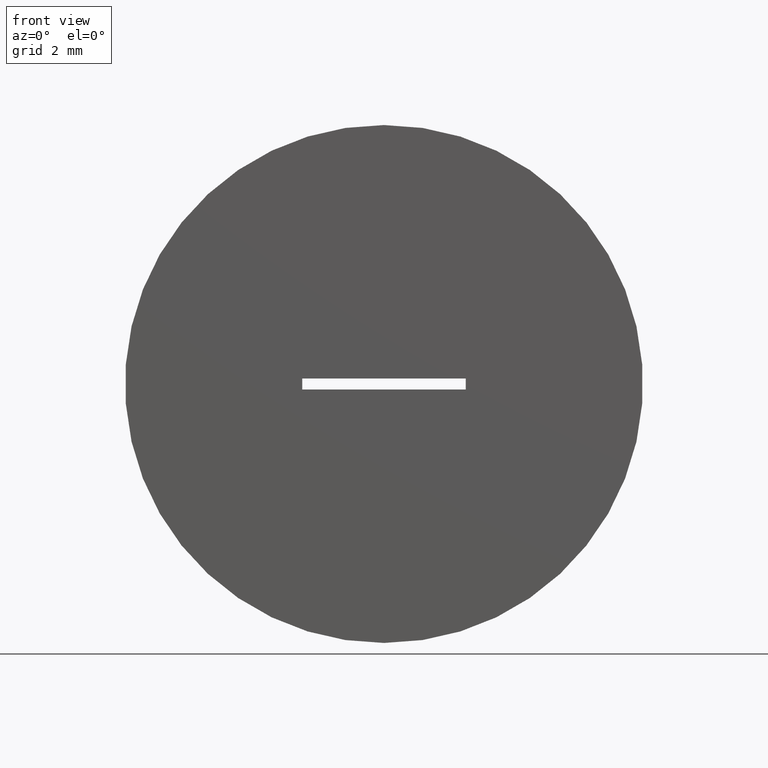
[diagram: clean part render]
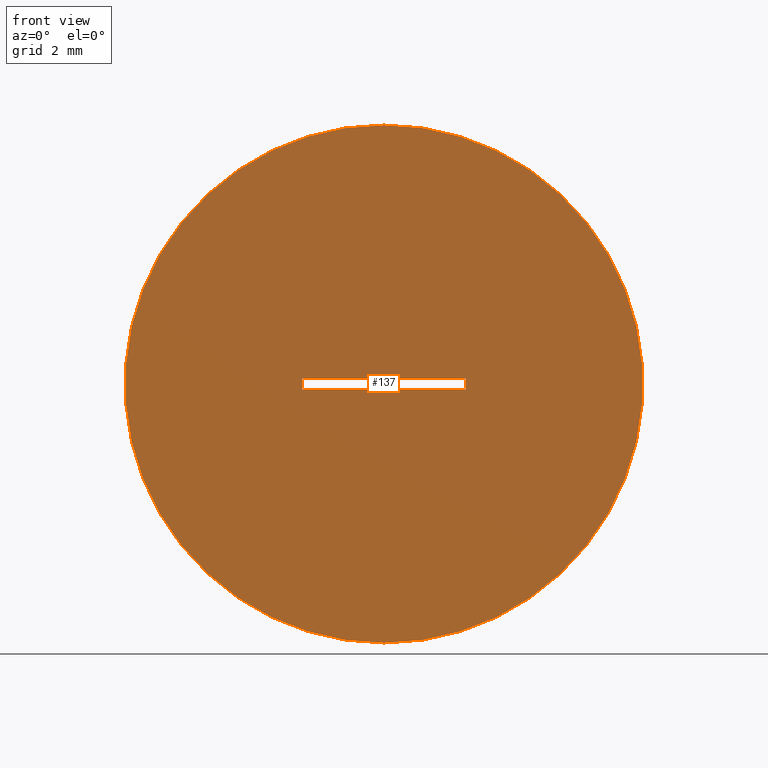
[diagram: same view with one face highlighted and labeled with its STEP entity id]
A machine part, front view. The second image highlights one B-rep face of the part: STEP entity #137.
In plain terms, the highlighted planar face has unit normal (0, 1, 0).
Its self-contained STEP definition (entity closure, byte-faithful):
#5 = CARTESIAN_POINT ( 'NONE',  ( -1.499999999999999778, 0.000000000000000000, -0.09999999999999999167 ) ) ;
#7 = LINE ( 'NONE', #89, #75 ) ;
#9 = FACE_BOUND ( 'NONE', #263, .T. ) ;
#11 = CARTESIAN_POINT ( 'NONE',  ( 0.000000000000000000, 0.000000000000000000, 0.000000000000000000 ) ) ;
#17 = AXIS2_PLACEMENT_3D ( 'NONE', #66, #70, #278 ) ;
#23 = VERTEX_POINT ( 'NONE', #269 ) ;
#24 = EDGE_CURVE ( 'NONE', #283, #183, #225, .T. ) ;
#28 = ORIENTED_EDGE ( 'NONE', *, *, #24, .T. ) ;
#33 = CARTESIAN_POINT ( 'NONE',  ( 0.000000000000000000, 0.000000000000000000, -4.750000000000000000 ) ) ;
#60 = EDGE_CURVE ( 'NONE', #107, #283, #230, .T. ) ;
#66 = CARTESIAN_POINT ( 'NONE',  ( 0.000000000000000000, 0.000000000000000000, 0.000000000000000000 ) ) ;
#68 = CARTESIAN_POINT ( 'NONE',  ( -1.499999999999999778, 0.000000000000000000, 0.1000000000000000194 ) ) ;
#70 = DIRECTION ( 'NONE',  ( 0.000000000000000000, 1.000000000000000000, 0.000000000000000000 ) ) ;
#71 = EDGE_CURVE ( 'NONE', #183, #292, #7, .T. ) ;
#75 = VECTOR ( 'NONE', #165, 1000.000000000000000 ) ;
#84 = AXIS2_PLACEMENT_3D ( 'NONE', #227, #115, #266 ) ;
#86 = DIRECTION ( 'NONE',  ( -1.000000000000000000, -0.000000000000000000, -0.000000000000000000 ) ) ;
#88 = DIRECTION ( 'NONE',  ( -0.000000000000000000, -0.000000000000000000, -1.000000000000000000 ) ) ;
#89 = CARTESIAN_POINT ( 'NONE',  ( -1.499999999999999778, 0.000000000000000000, 0.1000000000000000194 ) ) ;
#90 = CARTESIAN_POINT ( 'NONE',  ( -1.499999999999999778, 0.000000000000000000, -0.09999999999999999167 ) ) ;
#100 = AXIS2_PLACEMENT_3D ( 'NONE', #11, #300, #212 ) ;
#105 = ORIENTED_EDGE ( 'NONE', *, *, #231, .F. ) ;
#107 = VERTEX_POINT ( 'NONE', #229 ) ;
#111 = ORIENTED_EDGE ( 'NONE', *, *, #129, .T. ) ;
#115 = DIRECTION ( 'NONE',  ( 0.000000000000000000, 1.000000000000000000, 0.000000000000000000 ) ) ;
#116 = PLANE ( 'NONE',  #84 ) ;
#126 = VERTEX_POINT ( 'NONE', #33 ) ;
#129 = EDGE_CURVE ( 'NONE', #292, #107, #224, .T. ) ;
#137 = ADVANCED_FACE ( 'NONE', ( #250, #9 ), #116, .F. ) ;
#144 = CIRCLE ( 'NONE', #17, 4.750000000000000000 ) ;
#149 = CARTESIAN_POINT ( 'NONE',  ( -1.499999999999999778, 0.000000000000000000, -0.09999999999999999167 ) ) ;
#151 = VECTOR ( 'NONE', #190, 1000.000000000000000 ) ;
#165 = DIRECTION ( 'NONE',  ( 1.000000000000000000, 0.000000000000000000, 0.000000000000000000 ) ) ;
#179 = EDGE_LOOP ( 'NONE', ( #105, #234 ) ) ;
#183 = VERTEX_POINT ( 'NONE', #68 ) ;
#190 = DIRECTION ( 'NONE',  ( 0.000000000000000000, 0.000000000000000000, 1.000000000000000000 ) ) ;
#212 = DIRECTION ( 'NONE',  ( 0.000000000000000000, 0.000000000000000000, 1.000000000000000000 ) ) ;
#222 = ORIENTED_EDGE ( 'NONE', *, *, #60, .T. ) ;
#224 = LINE ( 'NONE', #295, #282 ) ;
#225 = LINE ( 'NONE', #90, #151 ) ;
#227 = CARTESIAN_POINT ( 'NONE',  ( 0.000000000000000000, 0.000000000000000000, 0.000000000000000000 ) ) ;
#229 = CARTESIAN_POINT ( 'NONE',  ( 1.500000000000000222, 0.000000000000000000, -0.09999999999999999167 ) ) ;
#230 = LINE ( 'NONE', #5, #310 ) ;
#231 = EDGE_CURVE ( 'NONE', #126, #23, #144, .T. ) ;
#232 = CARTESIAN_POINT ( 'NONE',  ( 1.500000000000000222, 0.000000000000000000, 0.1000000000000000194 ) ) ;
#234 = ORIENTED_EDGE ( 'NONE', *, *, #249, .F. ) ;
#249 = EDGE_CURVE ( 'NONE', #23, #126, #297, .T. ) ;
#250 = FACE_OUTER_BOUND ( 'NONE', #179, .T. ) ;
#263 = EDGE_LOOP ( 'NONE', ( #111, #222, #28, #288 ) ) ;
#266 = DIRECTION ( 'NONE',  ( 0.000000000000000000, -0.000000000000000000, 1.000000000000000000 ) ) ;
#269 = CARTESIAN_POINT ( 'NONE',  ( 5.817072295949927426E-16, 0.000000000000000000, 4.750000000000000000 ) ) ;
#278 = DIRECTION ( 'NONE',  ( 0.000000000000000000, 0.000000000000000000, 1.000000000000000000 ) ) ;
#282 = VECTOR ( 'NONE', #88, 1000.000000000000000 ) ;
#283 = VERTEX_POINT ( 'NONE', #149 ) ;
#288 = ORIENTED_EDGE ( 'NONE', *, *, #71, .T. ) ;
#292 = VERTEX_POINT ( 'NONE', #232 ) ;
#295 = CARTESIAN_POINT ( 'NONE',  ( 1.500000000000000222, 0.000000000000000000, -0.09999999999999999167 ) ) ;
#297 = CIRCLE ( 'NONE', #100, 4.750000000000000000 ) ;
#300 = DIRECTION ( 'NONE',  ( 0.000000000000000000, 1.000000000000000000, 0.000000000000000000 ) ) ;
#310 = VECTOR ( 'NONE', #86, 1000.000000000000000 ) ;